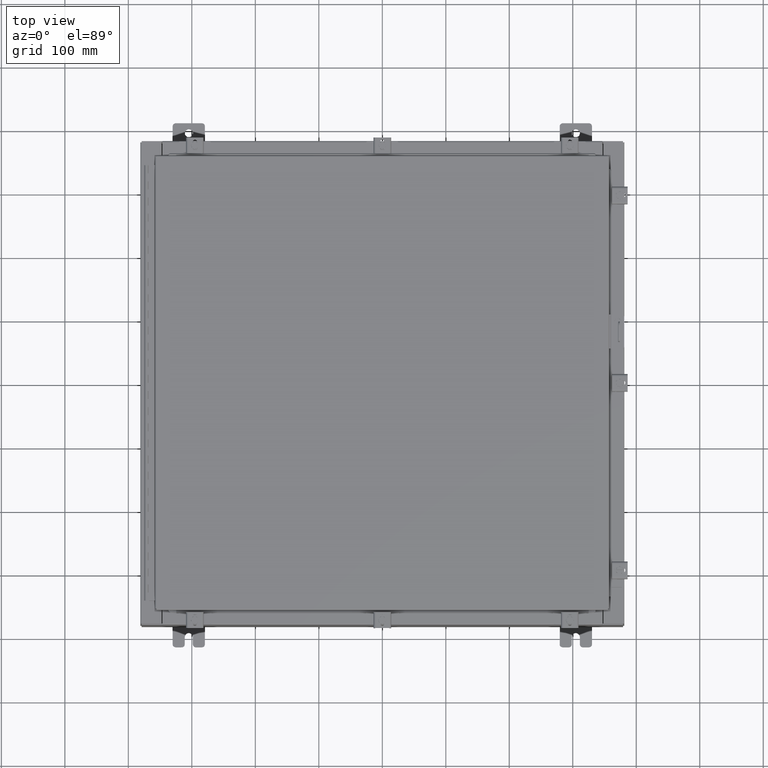
[diagram: clean part render]
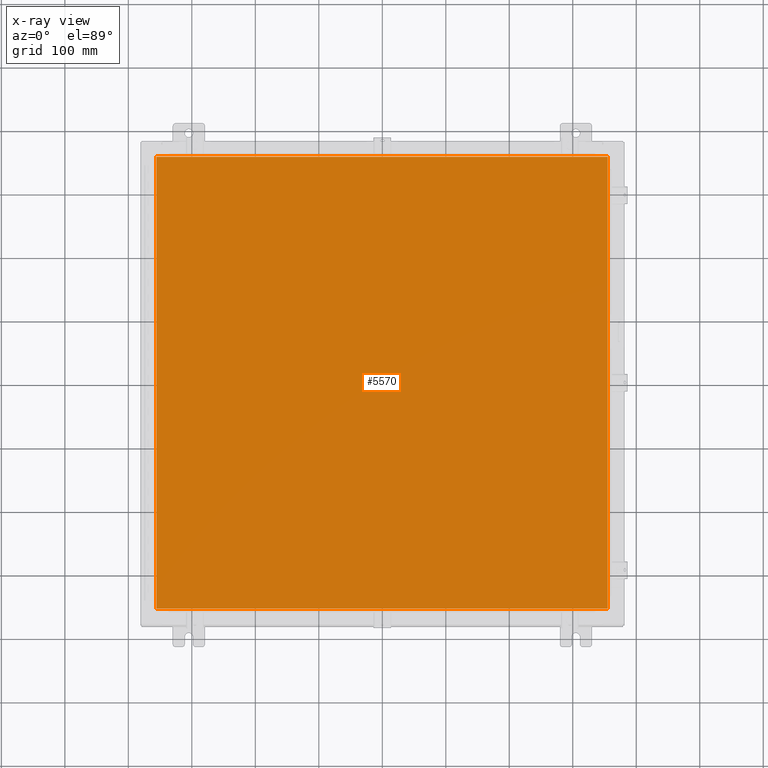
[diagram: x-ray — body ghosted, one internal face saturated and labeled with its STEP entity id]
A machine part, top view, then the same camera in x-ray: the body is ghosted and one INTERNAL B-rep face — a face not visible from any outside direction — is saturated and labeled: STEP entity #5570.
In plain terms, the highlighted planar face has unit normal (0, 0, -1).
Its self-contained STEP definition (entity closure, byte-faithful):
#373 = PLANE ( 'NONE',  #7504 ) ;
#2050 = CARTESIAN_POINT ( 'NONE',  ( 13.99030000000000100, -14.00630000000000300, -0.07470000000000015500 ) ) ;
#2163 = VECTOR ( 'NONE', #34451, 39.37007874015748100 ) ;
#2184 = VERTEX_POINT ( 'NONE', #23654 ) ;
#2284 = ORIENTED_EDGE ( 'NONE', *, *, #7104, .F. ) ;
#2565 = ORIENTED_EDGE ( 'NONE', *, *, #28149, .F. ) ;
#3159 = VERTEX_POINT ( 'NONE', #23240 ) ;
#3400 = DIRECTION ( 'NONE',  ( -1.000000000000000000, 0.0000000000000000000, -0.0000000000000000000 ) ) ;
#3532 = VERTEX_POINT ( 'NONE', #22407 ) ;
#4045 = VECTOR ( 'NONE', #35671, 39.37007874015748100 ) ;
#4321 = EDGE_CURVE ( 'NONE', #3159, #2184, #7096, .T. ) ;
#5517 = VECTOR ( 'NONE', #33239, 39.37007874015748100 ) ;
#5570 = ADVANCED_FACE ( 'NONE', ( #28323 ), #373, .T. ) ;
#5605 = ORIENTED_EDGE ( 'NONE', *, *, #25477, .F. ) ;
#7096 = LINE ( 'NONE', #2050, #38213 ) ;
#7104 = EDGE_CURVE ( 'NONE', #3532, #13994, #37589, .T. ) ;
#7504 = AXIS2_PLACEMENT_3D ( 'NONE', #36380, #21477, #3400 ) ;
#9558 = EDGE_LOOP ( 'NONE', ( #18215, #5605, #2284, #2565 ) ) ;
#10216 = LINE ( 'NONE', #28382, #2163 ) ;
#13994 = VERTEX_POINT ( 'NONE', #24761 ) ;
#17107 = DIRECTION ( 'NONE',  ( 0.0000000000000000000, 1.000000000000000000, 0.0000000000000000000 ) ) ;
#18167 = CARTESIAN_POINT ( 'NONE',  ( -13.99029999999999800, 14.00629999999999600, -0.07470000000000015500 ) ) ;
#18215 = ORIENTED_EDGE ( 'NONE', *, *, #4321, .F. ) ;
#20648 = CARTESIAN_POINT ( 'NONE',  ( -13.99029999999999200, -14.00630000000000300, -0.07469999999999688000 ) ) ;
#21477 = DIRECTION ( 'NONE',  ( 0.0000000000000000000, 0.0000000000000000000, -1.000000000000000000 ) ) ;
#22407 = CARTESIAN_POINT ( 'NONE',  ( -13.99029999999999800, 14.00629999999999400, -0.07470000000000015500 ) ) ;
#23240 = CARTESIAN_POINT ( 'NONE',  ( 13.99030000000000100, -14.00630000000000300, -0.07470000000000015500 ) ) ;
#23654 = CARTESIAN_POINT ( 'NONE',  ( 13.99030000000000100, 14.00629999999999400, -0.07470000000000015500 ) ) ;
#24761 = CARTESIAN_POINT ( 'NONE',  ( -13.99029999999999800, -14.00630000000000100, -0.07470000000000015500 ) ) ;
#25477 = EDGE_CURVE ( 'NONE', #13994, #3159, #27196, .T. ) ;
#27196 = LINE ( 'NONE', #20648, #4045 ) ;
#28149 = EDGE_CURVE ( 'NONE', #2184, #3532, #10216, .T. ) ;
#28323 = FACE_OUTER_BOUND ( 'NONE', #9558, .T. ) ;
#28382 = CARTESIAN_POINT ( 'NONE',  ( 13.99030000000000100, 14.00629999999999400, -0.07469999999999907300 ) ) ;
#33239 = DIRECTION ( 'NONE',  ( 0.0000000000000000000, -1.000000000000000000, 0.0000000000000000000 ) ) ;
#34451 = DIRECTION ( 'NONE',  ( -1.000000000000000000, -0.0000000000000000000, -0.0000000000000000000 ) ) ;
#35671 = DIRECTION ( 'NONE',  ( 1.000000000000000000, -0.0000000000000000000, -0.0000000000000000000 ) ) ;
#36380 = CARTESIAN_POINT ( 'NONE',  ( 0.0000000000000000000, 0.0000000000000000000, -0.07470000000000015500 ) ) ;
#37589 = LINE ( 'NONE', #18167, #5517 ) ;
#38213 = VECTOR ( 'NONE', #17107, 39.37007874015748100 ) ;